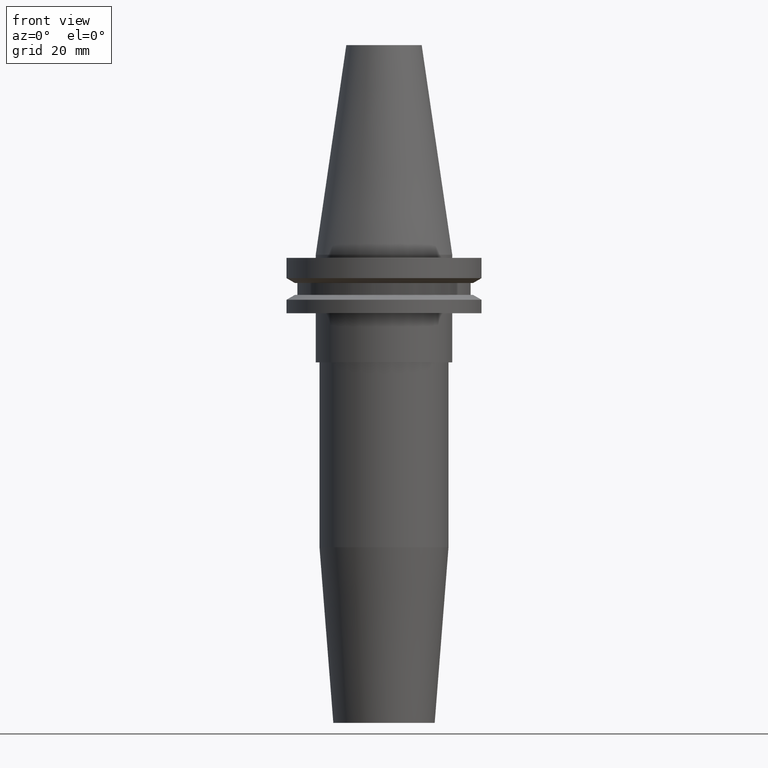
[diagram: clean part render]
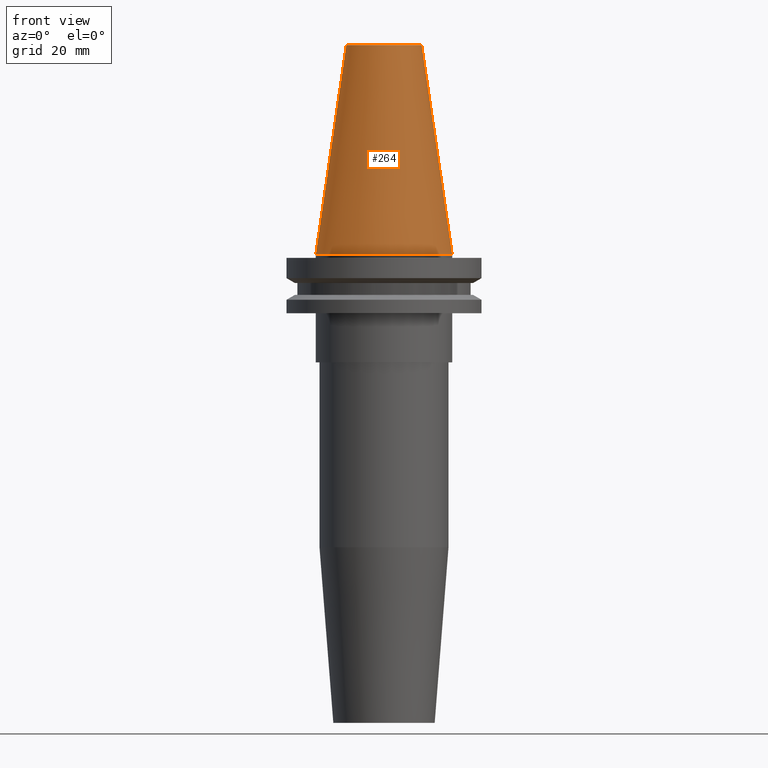
[diagram: same view with one face highlighted and labeled with its STEP entity id]
A machine part, front view. The second image highlights one B-rep face of the part: STEP entity #264.
In plain terms, the highlighted conical surface has half-angle 8.297 deg.
Its self-contained STEP definition (entity closure, byte-faithful):
#18 = CARTESIAN_POINT ( 'NONE',  ( -12.27178102086201150, 0.000000000000000000, 68.25000000000000000 ) ) ;
#24 = VERTEX_POINT ( 'NONE', #554 ) ;
#45 = FACE_OUTER_BOUND ( 'NONE', #158, .T. ) ;
#61 = AXIS2_PLACEMENT_3D ( 'NONE', #399, #325, #408 ) ;
#64 = CARTESIAN_POINT ( 'NONE',  ( 12.27178102086201150, 2.112318622904291439E-15, 68.25000000000000000 ) ) ;
#72 = CIRCLE ( 'NONE', #113, 22.22500000000000142 ) ;
#74 = DIRECTION ( 'NONE',  ( 0.1443082272672999711, 1.767266086135276757E-17, -0.9895327864921755756 ) ) ;
#99 = CARTESIAN_POINT ( 'NONE',  ( 0.000000000000000000, 0.000000000000000000, 0.000000000000000000 ) ) ;
#113 = AXIS2_PLACEMENT_3D ( 'NONE', #99, #711, #823 ) ;
#133 = LINE ( 'NONE', #682, #329 ) ;
#158 = EDGE_LOOP ( 'NONE', ( #457, #208, #409, #639 ) ) ;
#208 = ORIENTED_EDGE ( 'NONE', *, *, #509, .F. ) ;
#261 = VERTEX_POINT ( 'NONE', #590 ) ;
#264 = ADVANCED_FACE ( 'NONE', ( #45 ), #758, .T. ) ;
#295 = EDGE_CURVE ( 'NONE', #261, #24, #72, .T. ) ;
#325 = DIRECTION ( 'NONE',  ( -0.000000000000000000, -0.000000000000000000, 1.000000000000000000 ) ) ;
#329 = VECTOR ( 'NONE', #74, 999.9999999999998863 ) ;
#354 = EDGE_CURVE ( 'NONE', #645, #261, #773, .T. ) ;
#399 = CARTESIAN_POINT ( 'NONE',  ( 0.000000000000000000, 0.000000000000000000, 68.25000000000000000 ) ) ;
#408 = DIRECTION ( 'NONE',  ( 1.000000000000000000, 0.000000000000000000, 0.000000000000000000 ) ) ;
#409 = ORIENTED_EDGE ( 'NONE', *, *, #354, .T. ) ;
#436 = CARTESIAN_POINT ( 'NONE',  ( -22.22500000000000142, 0.000000000000000000, 0.000000000000000000 ) ) ;
#457 = ORIENTED_EDGE ( 'NONE', *, *, #618, .F. ) ;
#460 = DIRECTION ( 'NONE',  ( 0.000000000000000000, 0.000000000000000000, -1.000000000000000000 ) ) ;
#496 = AXIS2_PLACEMENT_3D ( 'NONE', #765, #460, #648 ) ;
#506 = VERTEX_POINT ( 'NONE', #64 ) ;
#509 = EDGE_CURVE ( 'NONE', #645, #506, #638, .T. ) ;
#554 = CARTESIAN_POINT ( 'NONE',  ( 22.22500000000000142, 2.721777511104992849E-15, 0.000000000000000000 ) ) ;
#572 = VECTOR ( 'NONE', #776, 999.9999999999998863 ) ;
#590 = CARTESIAN_POINT ( 'NONE',  ( -22.22500000000000142, 0.000000000000000000, 0.000000000000000000 ) ) ;
#618 = EDGE_CURVE ( 'NONE', #506, #24, #133, .T. ) ;
#638 = CIRCLE ( 'NONE', #61, 12.27178102086201150 ) ;
#639 = ORIENTED_EDGE ( 'NONE', *, *, #295, .T. ) ;
#645 = VERTEX_POINT ( 'NONE', #18 ) ;
#648 = DIRECTION ( 'NONE',  ( -1.000000000000000000, 0.000000000000000000, 0.000000000000000000 ) ) ;
#682 = CARTESIAN_POINT ( 'NONE',  ( 22.22500000000000142, 2.721777511104992849E-15, 0.000000000000000000 ) ) ;
#711 = DIRECTION ( 'NONE',  ( -0.000000000000000000, -0.000000000000000000, 1.000000000000000000 ) ) ;
#758 = CONICAL_SURFACE ( 'NONE', #496, 22.22500000000000142, 0.1448138465474119174 ) ;
#765 = CARTESIAN_POINT ( 'NONE',  ( 0.000000000000000000, 0.000000000000000000, 0.000000000000000000 ) ) ;
#773 = LINE ( 'NONE', #436, #572 ) ;
#776 = DIRECTION ( 'NONE',  ( -0.1443082272672999711, 0.000000000000000000, -0.9895327864921755756 ) ) ;
#823 = DIRECTION ( 'NONE',  ( 1.000000000000000000, 0.000000000000000000, 0.000000000000000000 ) ) ;